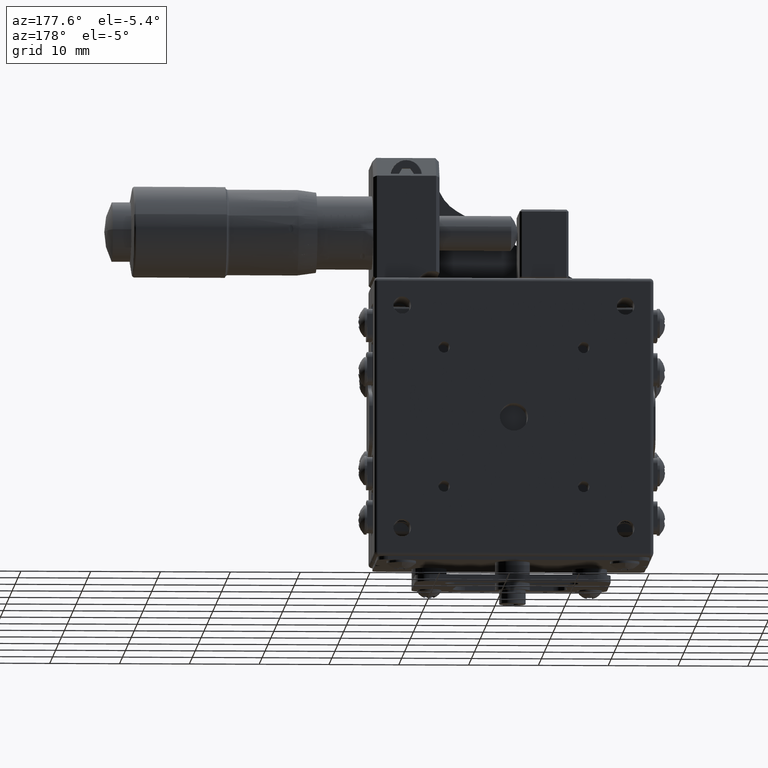
[diagram: clean part render]
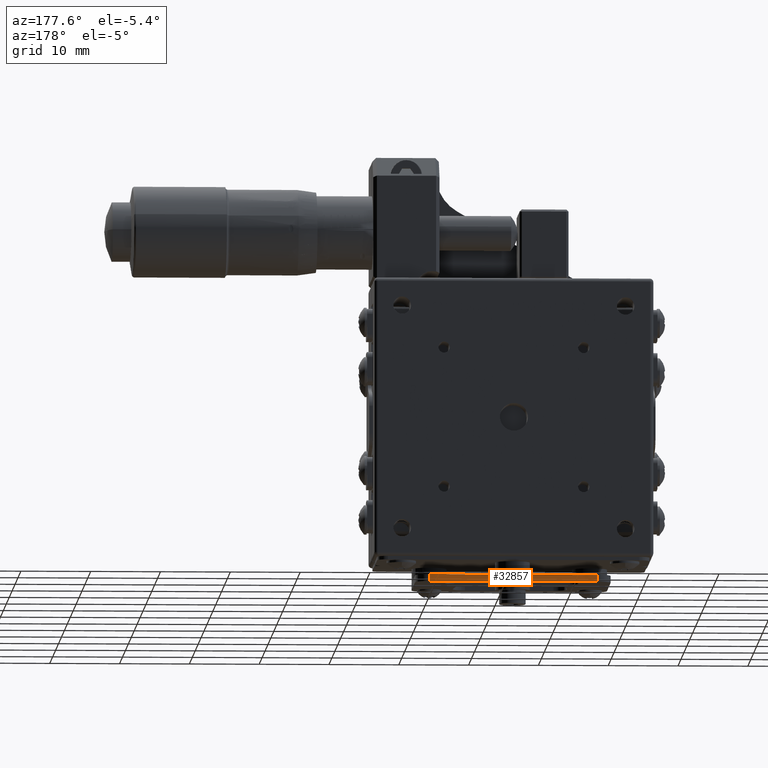
[diagram: same view with one face highlighted and labeled with its STEP entity id]
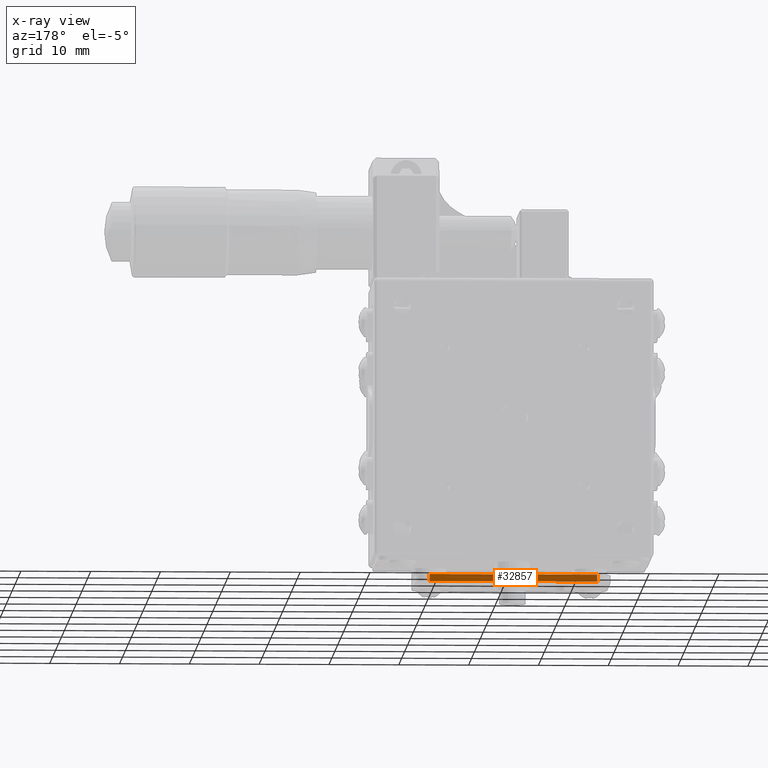
[diagram: x-ray of the same camera — body ghosted, the highlighted face saturated]
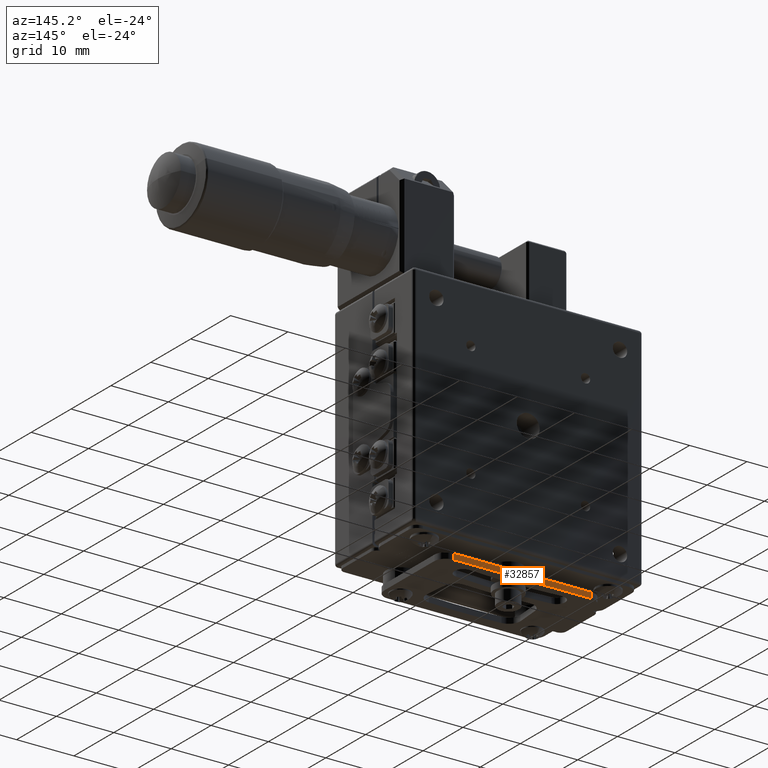
[diagram: same view with one face highlighted and labeled with its STEP entity id]
A machine part, auxiliary view. The second image highlights one B-rep face of the part: STEP entity #32857.
The next image is the same camera in x-ray: the body ghosted, the highlighted face saturated — about 0% of this face is hidden behind the body in this view.
A second angle (auxiliary view) of the same face is appended — the face is thin or edge-on in the first view.
In plain terms, the highlighted planar face has unit normal (0, -1, 0).
Its self-contained STEP definition (entity closure, byte-faithful):
#590 = EDGE_CURVE ( 'NONE', #34601, #27998, #39010, .T. ) ;
#1534 = ORIENTED_EDGE ( 'NONE', *, *, #11145, .F. ) ;
#2496 = DIRECTION ( 'NONE',  ( 0.000000000000000000, 0.000000000000000000, -1.000000000000000000 ) ) ;
#2614 = CARTESIAN_POINT ( 'NONE',  ( -15.10441094360695047, 9.290954773869358974, -23.50000000000000000 ) ) ;
#2761 = DIRECTION ( 'NONE',  ( -1.000000000000000000, 0.000000000000000000, 0.000000000000000000 ) ) ;
#2972 = FACE_OUTER_BOUND ( 'NONE', #10530, .T. ) ;
#3158 = EDGE_CURVE ( 'NONE', #33041, #34601, #43626, .T. ) ;
#4981 = CARTESIAN_POINT ( 'NONE',  ( -15.10441094360695047, 9.290954773869358974, -23.50000000000000000 ) ) ;
#6234 = PLANE ( 'NONE',  #42103 ) ;
#8139 = VECTOR ( 'NONE', #42979, 1000.000000000000000 ) ;
#8934 = DIRECTION ( 'NONE',  ( 0.000000000000000000, 0.000000000000000000, -1.000000000000000000 ) ) ;
#9182 = VECTOR ( 'NONE', #33170, 1000.000000000000000 ) ;
#10530 = EDGE_LOOP ( 'NONE', ( #39683, #1534, #45237, #36171 ) ) ;
#11145 = EDGE_CURVE ( 'NONE', #35143, #27998, #47665, .T. ) ;
#12159 = CARTESIAN_POINT ( 'NONE',  ( -15.10441094360695047, 9.290954773869358974, -22.50000000000000000 ) ) ;
#15236 = EDGE_CURVE ( 'NONE', #33041, #35143, #28614, .T. ) ;
#15578 = VECTOR ( 'NONE', #2761, 1000.000000000000000 ) ;
#17723 = CARTESIAN_POINT ( 'NONE',  ( 8.895589056393069072, 9.290954773869358974, -23.50000000000000000 ) ) ;
#21366 = DIRECTION ( 'NONE',  ( 0.000000000000000000, -1.000000000000000000, 0.000000000000000000 ) ) ;
#21461 = VECTOR ( 'NONE', #8934, 1000.000000000000000 ) ;
#25712 = CARTESIAN_POINT ( 'NONE',  ( 8.895589056393069072, 9.290954773869358974, -22.50000000000000000 ) ) ;
#27998 = VERTEX_POINT ( 'NONE', #2614 ) ;
#28614 = LINE ( 'NONE', #29340, #15578 ) ;
#28773 = CARTESIAN_POINT ( 'NONE',  ( -15.10441094360695047, 9.290954773869358974, -22.50000000000000000 ) ) ;
#29058 = CARTESIAN_POINT ( 'NONE',  ( -15.10441094360695047, 9.290954773869358974, -22.50000000000000000 ) ) ;
#29340 = CARTESIAN_POINT ( 'NONE',  ( -15.10441094360695047, 9.290954773869358974, -22.50000000000000000 ) ) ;
#32857 = ADVANCED_FACE ( 'NONE', ( #2972 ), #6234, .F. ) ;
#33041 = VERTEX_POINT ( 'NONE', #35230 ) ;
#33170 = DIRECTION ( 'NONE',  ( 0.000000000000000000, 0.000000000000000000, -1.000000000000000000 ) ) ;
#34601 = VERTEX_POINT ( 'NONE', #17723 ) ;
#35143 = VERTEX_POINT ( 'NONE', #12159 ) ;
#35230 = CARTESIAN_POINT ( 'NONE',  ( 8.895589056393069072, 9.290954773869358974, -22.50000000000000000 ) ) ;
#36171 = ORIENTED_EDGE ( 'NONE', *, *, #3158, .T. ) ;
#39010 = LINE ( 'NONE', #4981, #8139 ) ;
#39683 = ORIENTED_EDGE ( 'NONE', *, *, #590, .T. ) ;
#42103 = AXIS2_PLACEMENT_3D ( 'NONE', #29058, #21366, #2496 ) ;
#42979 = DIRECTION ( 'NONE',  ( -1.000000000000000000, 0.000000000000000000, 0.000000000000000000 ) ) ;
#43626 = LINE ( 'NONE', #25712, #9182 ) ;
#45237 = ORIENTED_EDGE ( 'NONE', *, *, #15236, .F. ) ;
#47665 = LINE ( 'NONE', #28773, #21461 ) ;